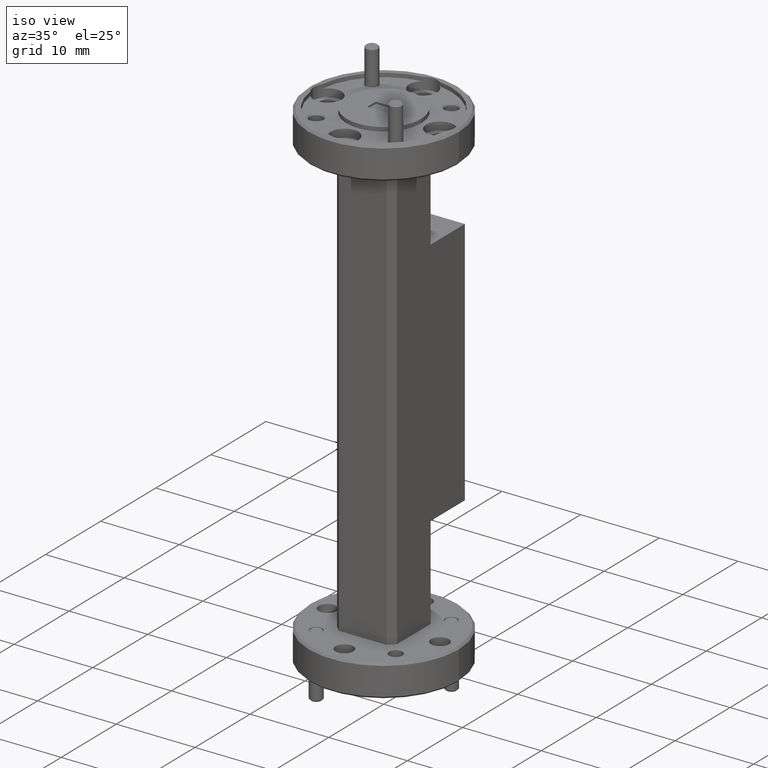
[diagram: clean part render]
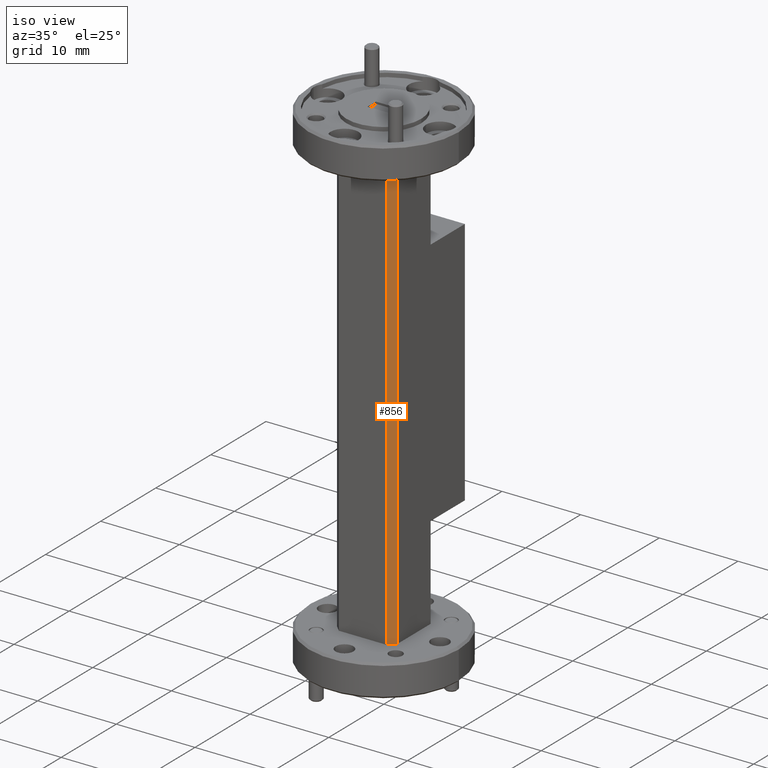
[diagram: same view with one face highlighted and labeled with its STEP entity id]
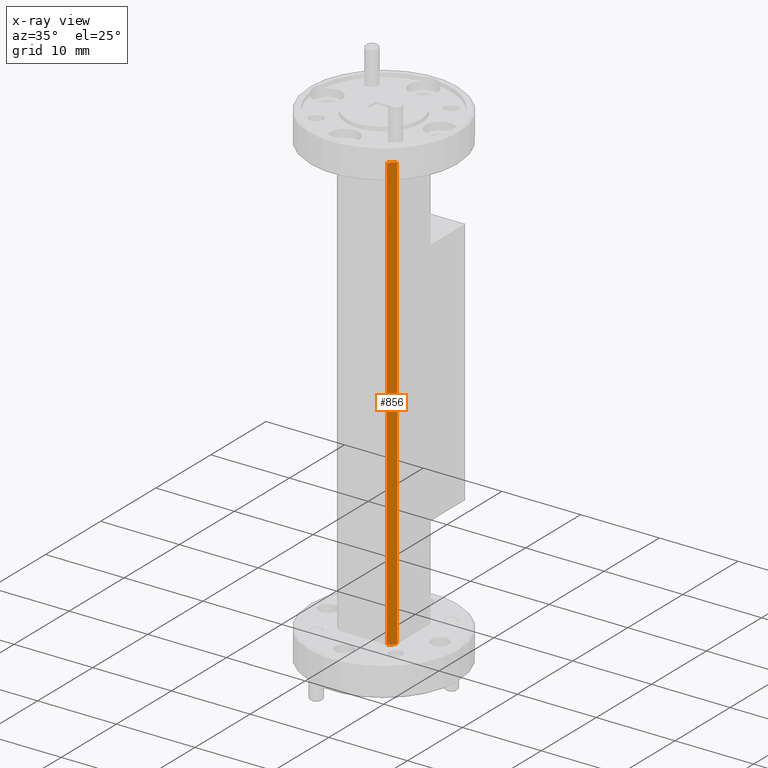
[diagram: x-ray of the same camera — body ghosted, the highlighted face saturated]
A machine part, iso view. The second image highlights one B-rep face of the part: STEP entity #856.
The next image is the same camera in x-ray: the body ghosted, the highlighted face saturated — about 0% of this face is hidden behind the body in this view.
In plain terms, the highlighted planar face has unit normal (-0.7071, 0.7071, 0).
Its self-contained STEP definition (entity closure, byte-faithful):
#84 = DIRECTION ( 'NONE',  ( 0.000000000000000000, 0.000000000000000000, -1.000000000000000000 ) ) ;
#372 = CARTESIAN_POINT ( 'NONE',  ( 0.1200000000000000233, -0.1500000000000000500, 1.090000000000000080 ) ) ;
#466 = CARTESIAN_POINT ( 'NONE',  ( 0.1499999999999999389, -0.1200000000000000927, 1.090000000000000080 ) ) ;
#572 = VERTEX_POINT ( 'NONE', #466 ) ;
#704 = EDGE_CURVE ( 'NONE', #572, #5212, #5329, .T. ) ;
#760 = LINE ( 'NONE', #4236, #3616 ) ;
#833 = ORIENTED_EDGE ( 'NONE', *, *, #5022, .F. ) ;
#856 = ADVANCED_FACE ( 'NONE', ( #6144 ), #3863, .F. ) ;
#1033 = ORIENTED_EDGE ( 'NONE', *, *, #704, .F. ) ;
#1072 = VECTOR ( 'NONE', #84, 39.37007874015748143 ) ;
#1304 = VECTOR ( 'NONE', #7070, 39.37007874015748143 ) ;
#1759 = LINE ( 'NONE', #4651, #4589 ) ;
#2290 = EDGE_CURVE ( 'NONE', #3014, #572, #3587, .T. ) ;
#2466 = DIRECTION ( 'NONE',  ( -0.7071067811865471286, -0.7071067811865479058, -0.000000000000000000 ) ) ;
#2704 = DIRECTION ( 'NONE',  ( -0.7071067811865479058, 0.7071067811865471286, 0.000000000000000000 ) ) ;
#2736 = DIRECTION ( 'NONE',  ( 0.000000000000000000, 0.000000000000000000, -1.000000000000000000 ) ) ;
#3014 = VERTEX_POINT ( 'NONE', #372 ) ;
#3092 = CARTESIAN_POINT ( 'NONE',  ( 0.1499999999999999389, -0.1200000000000000927, 1.250000000000000000 ) ) ;
#3200 = EDGE_CURVE ( 'NONE', #3613, #3014, #1759, .T. ) ;
#3587 = LINE ( 'NONE', #6529, #1304 ) ;
#3613 = VERTEX_POINT ( 'NONE', #4797 ) ;
#3616 = VECTOR ( 'NONE', #2466, 39.37007874015748143 ) ;
#3863 = PLANE ( 'NONE',  #5306 ) ;
#4236 = CARTESIAN_POINT ( 'NONE',  ( 0.1350000000000000921, -0.1349999999999999256, -1.090000000000000080 ) ) ;
#4589 = VECTOR ( 'NONE', #7012, 39.37007874015748143 ) ;
#4651 = CARTESIAN_POINT ( 'NONE',  ( 0.1200000000000000233, -0.1500000000000000500, 1.250000000000000000 ) ) ;
#4797 = CARTESIAN_POINT ( 'NONE',  ( 0.1200000000000000233, -0.1500000000000000500, -1.090000000000000080 ) ) ;
#5022 = EDGE_CURVE ( 'NONE', #5212, #3613, #760, .T. ) ;
#5053 = ORIENTED_EDGE ( 'NONE', *, *, #3200, .F. ) ;
#5212 = VERTEX_POINT ( 'NONE', #6211 ) ;
#5306 = AXIS2_PLACEMENT_3D ( 'NONE', #5565, #2704, #2736 ) ;
#5329 = LINE ( 'NONE', #3092, #1072 ) ;
#5565 = CARTESIAN_POINT ( 'NONE',  ( 0.1499999999999999389, -0.1200000000000000927, 1.250000000000000000 ) ) ;
#6144 = FACE_OUTER_BOUND ( 'NONE', #7480, .T. ) ;
#6211 = CARTESIAN_POINT ( 'NONE',  ( 0.1499999999999999389, -0.1200000000000000927, -1.090000000000000080 ) ) ;
#6529 = CARTESIAN_POINT ( 'NONE',  ( 0.1350000000000000921, -0.1349999999999999256, 1.090000000000000080 ) ) ;
#6891 = ORIENTED_EDGE ( 'NONE', *, *, #2290, .F. ) ;
#7012 = DIRECTION ( 'NONE',  ( 0.000000000000000000, 0.000000000000000000, 1.000000000000000000 ) ) ;
#7070 = DIRECTION ( 'NONE',  ( 0.7071067811865471286, 0.7071067811865479058, -0.000000000000000000 ) ) ;
#7480 = EDGE_LOOP ( 'NONE', ( #6891, #5053, #833, #1033 ) ) ;